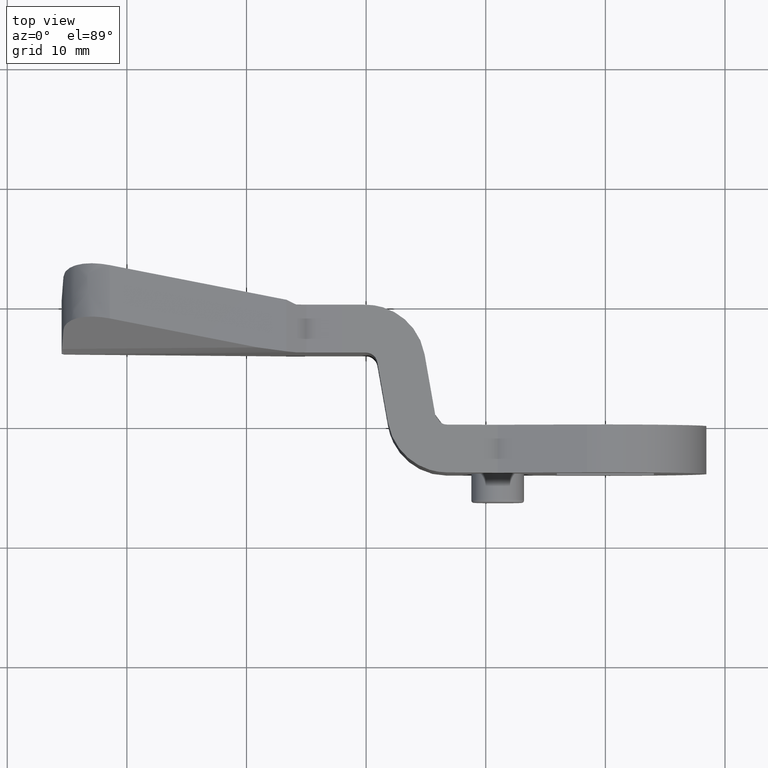
[diagram: clean part render]
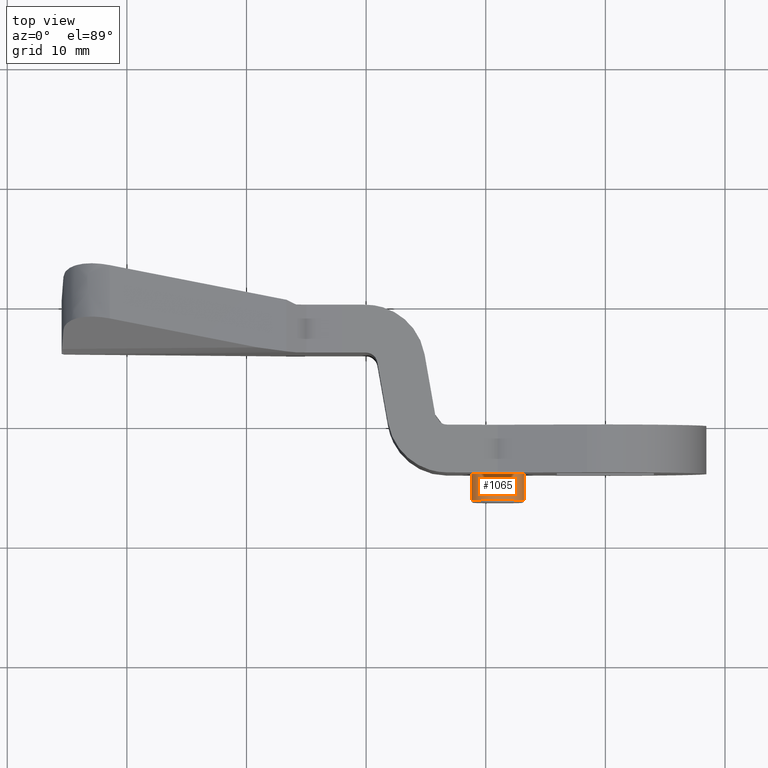
[diagram: same view with one face highlighted and labeled with its STEP entity id]
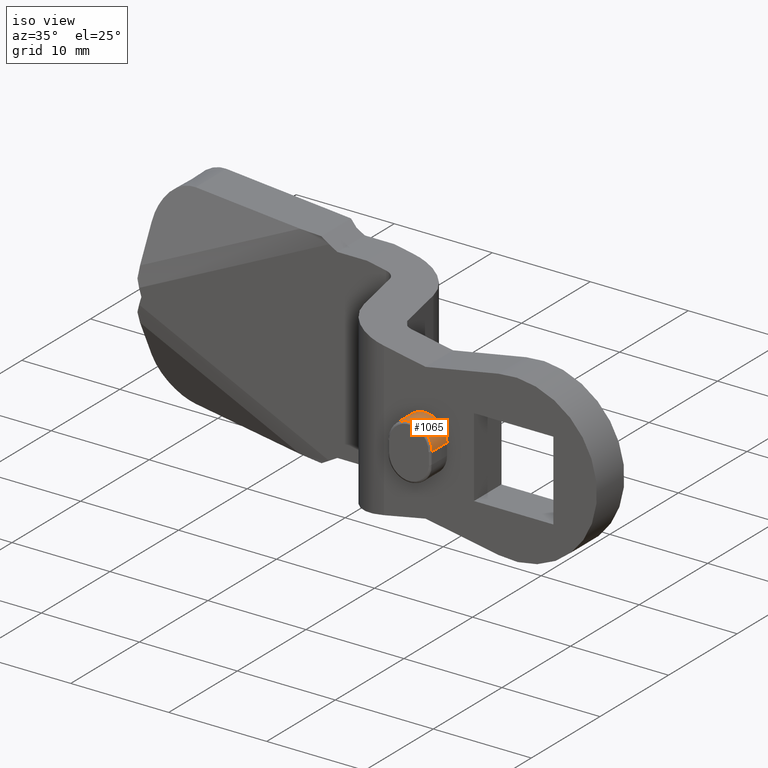
[diagram: same view with one face highlighted and labeled with its STEP entity id]
A machine part, top view. The second image highlights one B-rep face of the part: STEP entity #1065.
A second angle (iso view) of the same face is appended — the face is thin or edge-on in the first view.
In plain terms, the highlighted face is a freeform B-spline surface patch.
Its self-contained STEP definition (entity closure, byte-faithful):
#398=CARTESIAN_POINT('',(-6.800000322982689,-16.200000190000001,0.600000027900379));
#399=VERTEX_POINT('',#398);
#447=CARTESIAN_POINT('',(-11.200000531971501,-16.200000190000001,0.600000028498428));
#448=VERTEX_POINT('',#447);
#500=CARTESIAN_POINT('',(-11.200000531971490,-16.200000190000001,0.600000028498428));
#501=CARTESIAN_POINT('',(-11.200000531971487,-16.200000190000001,1.870170681178371));
#502=CARTESIAN_POINT('',(-10.100000479551650,-16.200000190000001,2.505256007418669));
#503=CARTESIAN_POINT('',(-9.000000427131807,-16.200000190000001,3.140341333658965));
#504=CARTESIAN_POINT('',(-7.900000374884608,-16.200000190000001,2.505256007119644));
#505=CARTESIAN_POINT('',(-6.800000322637411,-16.200000190000001,1.870170680580323));
#506=CARTESIAN_POINT('',(-6.800000322982695,-16.200000190000001,0.600000027900380));
#514=(BOUNDED_CURVE()B_SPLINE_CURVE(2,(#500,#501,#502,#503,#504,#505,#506),.UNSPECIFIED.,.F.,.U.)B_SPLINE_CURVE_WITH_KNOTS((3,2,2,3),(0.0,0.333333333333333,0.666666666666667,1.0),.UNSPECIFIED.)CURVE()GEOMETRIC_REPRESENTATION_ITEM()RATIONAL_B_SPLINE_CURVE((1.0,0.866025403761785,1.0,0.866025403761785,1.0,0.866025403761785,1.0))REPRESENTATION_ITEM(''));
#515=EDGE_CURVE('',#448,#399,#514,.T.);
#1004=CARTESIAN_POINT('',(-11.200000531971501,-14.000000190000019,0.600000028498428));
#1005=VERTEX_POINT('',#1004);
#1006=CARTESIAN_POINT('',(-11.200000531971501,-16.200000190000001,0.600000028498428));
#1007=CARTESIAN_POINT('',(-11.200000531971501,-14.000000190000019,0.600000028498428));
#1008=QUASI_UNIFORM_CURVE('',1,(#1006,#1007),.UNSPECIFIED.,.F.,.U.);
#1009=EDGE_CURVE('',#448,#1005,#1008,.T.);
#1019=CARTESIAN_POINT('',(-6.800754208087932,-16.255000190000001,0.542410738887915));
#1020=CARTESIAN_POINT('',(-6.800754208087932,-13.943625190000020,0.542410738887915));
#1021=CARTESIAN_POINT('',(-6.740595651329815,-16.255000190000001,2.839773311147283));
#1022=CARTESIAN_POINT('',(-6.740595651329815,-13.943625190000020,2.839773311147283));
#1023=CARTESIAN_POINT('',(-9.038395722864831,-16.255000190000001,2.799665062331406));
#1024=CARTESIAN_POINT('',(-9.038395722864831,-13.943625190000020,2.799665062331406));
#1025=CARTESIAN_POINT('',(-11.336195794399847,-16.255000190000001,2.759556813515528));
#1026=CARTESIAN_POINT('',(-11.336195794399847,-13.943625190000020,2.759556813515528));
#1027=CARTESIAN_POINT('',(-11.195897088341200,-16.255000190000001,0.465693235739449));
#1028=CARTESIAN_POINT('',(-11.195897088341200,-13.943625190000020,0.465693235739449));
#1036=(BOUNDED_SURFACE()B_SPLINE_SURFACE(1,2,((#1019,#1021,#1023,#1025,#1027),(#1020,#1022,#1024,#1026,#1028)),.UNSPECIFIED.,.F.,.F.,.U.)B_SPLINE_SURFACE_WITH_KNOTS((2,2),(3,2,3),(0.0,2.311374999999980),(0.0,3.758057406845126,7.516114813690252),.UNSPECIFIED.)GEOMETRIC_REPRESENTATION_ITEM()RATIONAL_B_SPLINE_SURFACE(((1.0,0.691513055782269,1.0,0.691513055782269,1.0),(1.0,0.691513055782269,1.0,0.691513055782269,1.0)))REPRESENTATION_ITEM('')SURFACE());
#1037=ORIENTED_EDGE('',*,*,#1009,.F.);
#1038=ORIENTED_EDGE('',*,*,#515,.T.);
#1039=CARTESIAN_POINT('',(-6.800000322982689,-14.000000190000019,0.600000027900379));
#1040=VERTEX_POINT('',#1039);
#1041=CARTESIAN_POINT('',(-6.800000322982689,-16.200000190000001,0.600000027900379));
#1042=CARTESIAN_POINT('',(-6.800000322982689,-14.000000190000019,0.600000027900379));
#1043=QUASI_UNIFORM_CURVE('',1,(#1041,#1042),.UNSPECIFIED.,.F.,.U.);
#1044=EDGE_CURVE('',#399,#1040,#1043,.T.);
#1045=ORIENTED_EDGE('',*,*,#1044,.T.);
#1046=CARTESIAN_POINT('',(-6.800000322982695,-14.000000190000019,0.600000027900379));
#1047=CARTESIAN_POINT('',(-6.800000322637410,-14.000000190000025,1.870170680580322));
#1048=CARTESIAN_POINT('',(-7.900000374884608,-14.000000190000019,2.505256007119644));
#1049=CARTESIAN_POINT('',(-9.000000427131807,-14.000000190000025,3.140341333658965));
#1050=CARTESIAN_POINT('',(-10.100000479551641,-14.000000190000019,2.505256007418669));
#1051=CARTESIAN_POINT('',(-11.200000531971485,-14.000000190000025,1.870170681178371));
#1052=CARTESIAN_POINT('',(-11.200000531971490,-14.000000190000019,0.600000028498428));
#1060=(BOUNDED_CURVE()B_SPLINE_CURVE(2,(#1046,#1047,#1048,#1049,#1050,#1051,#1052),.UNSPECIFIED.,.F.,.U.)B_SPLINE_CURVE_WITH_KNOTS((3,2,2,3),(0.0,0.333333333333333,0.666666666666667,1.0),.UNSPECIFIED.)CURVE()GEOMETRIC_REPRESENTATION_ITEM()RATIONAL_B_SPLINE_CURVE((1.0,0.866025403761785,1.0,0.866025403761785,1.0,0.866025403761785,1.0))REPRESENTATION_ITEM(''));
#1061=EDGE_CURVE('',#1040,#1005,#1060,.T.);
#1062=ORIENTED_EDGE('',*,*,#1061,.T.);
#1063=EDGE_LOOP('',(#1037,#1038,#1045,#1062));
#1064=FACE_OUTER_BOUND('',#1063,.T.);
#1065=ADVANCED_FACE('',(#1064),#1036,.T.);